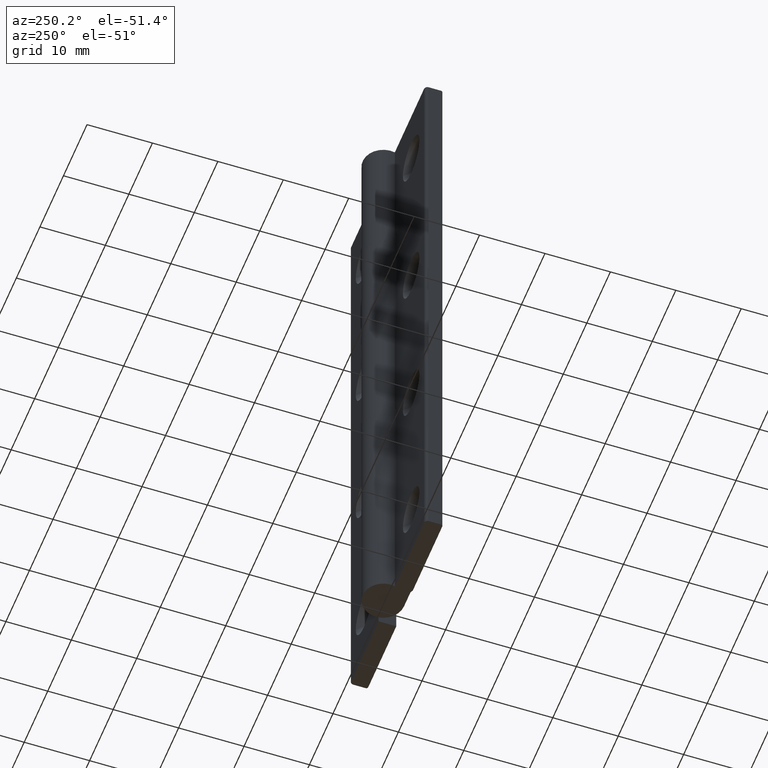
[diagram: clean part render]
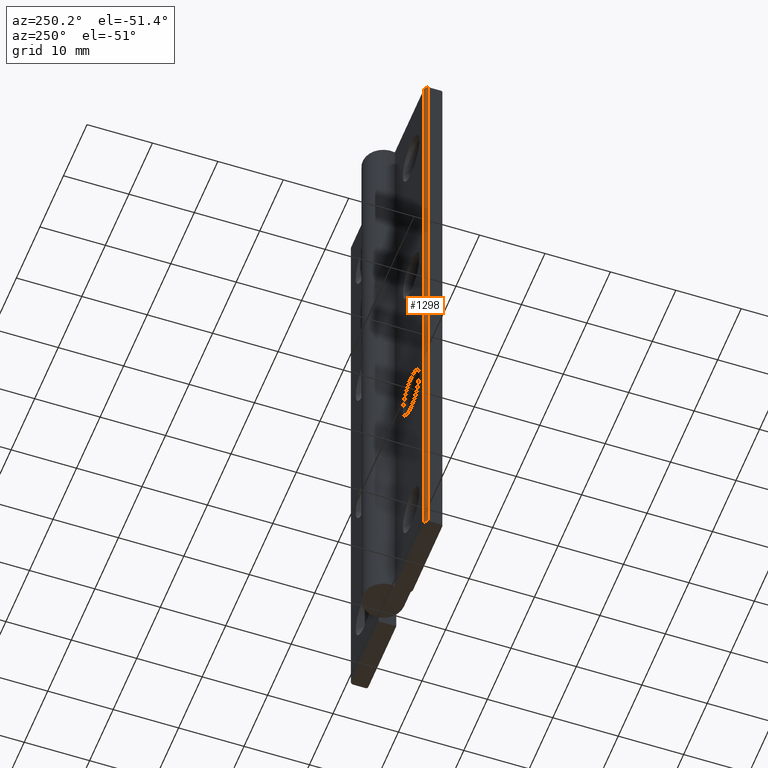
[diagram: same view with one face highlighted and labeled with its STEP entity id]
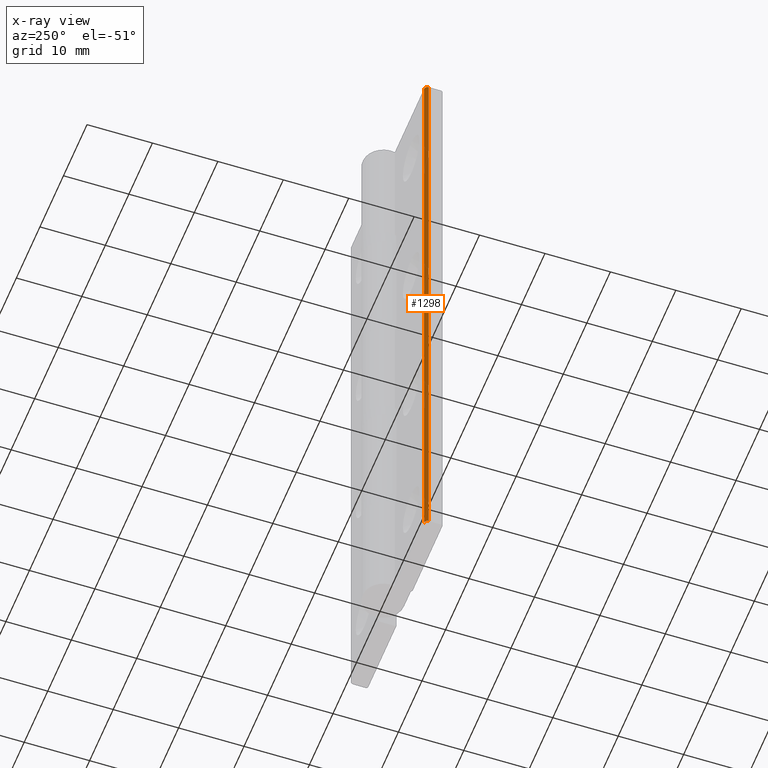
[diagram: x-ray of the same camera — body ghosted, the highlighted face saturated]
A machine part, auxiliary view. The second image highlights one B-rep face of the part: STEP entity #1298.
The next image is the same camera in x-ray: the body ghosted, the highlighted face saturated — about 0% of this face is hidden behind the body in this view.
In plain terms, the highlighted cylindrical surface (edge-blend (fillet) strip) has radius 0.5 mm, axis along (0, 0, -1).
Its self-contained STEP definition (entity closure, byte-faithful):
#73=CYLINDRICAL_SURFACE('',#1408,0.5);
#179=CIRCLE('',#1406,0.5);
#180=CIRCLE('',#1409,0.5);
#249=FACE_OUTER_BOUND('',#335,.T.);
#335=EDGE_LOOP('',(#1021,#1022,#1023,#1024));
#452=LINE('',#2023,#543);
#472=LINE('',#2091,#563);
#543=VECTOR('',#1591,100.);
#563=VECTOR('',#1667,100.);
#645=VERTEX_POINT('',#2020);
#646=VERTEX_POINT('',#2022);
#665=VERTEX_POINT('',#2084);
#666=VERTEX_POINT('',#2089);
#776=EDGE_CURVE('',#646,#645,#452,.T.);
#807=EDGE_CURVE('',#645,#665,#179,.T.);
#810=EDGE_CURVE('',#665,#666,#472,.T.);
#811=EDGE_CURVE('',#666,#646,#180,.T.);
#1021=ORIENTED_EDGE('',*,*,#807,.T.);
#1022=ORIENTED_EDGE('',*,*,#810,.T.);
#1023=ORIENTED_EDGE('',*,*,#811,.T.);
#1024=ORIENTED_EDGE('',*,*,#776,.T.);
#1298=ADVANCED_FACE('',(#249),#73,.T.);
#1406=AXIS2_PLACEMENT_3D('',#2086,#1661,#1662);
#1408=AXIS2_PLACEMENT_3D('',#2092,#1668,#1669);
#1409=AXIS2_PLACEMENT_3D('',#2093,#1670,#1671);
#1591=DIRECTION('',(0.,0.,-1.));
#1661=DIRECTION('center_axis',(0.,0.,1.));
#1662=DIRECTION('ref_axis',(-0.707106781186546,0.707106781186549,0.));
#1667=DIRECTION('',(0.,0.,1.));
#1668=DIRECTION('center_axis',(0.,0.,-1.));
#1669=DIRECTION('ref_axis',(-0.707106781186546,0.707106781186549,0.));
#1670=DIRECTION('center_axis',(0.,0.,-1.));
#1671=DIRECTION('ref_axis',(-0.707106781186546,0.707106781186549,0.));
#2020=CARTESIAN_POINT('',(-15.5,2.7,-100.));
#2022=CARTESIAN_POINT('',(-15.5,2.7,0.));
#2023=CARTESIAN_POINT('',(-15.5,2.7,0.));
#2084=CARTESIAN_POINT('',(-16.,2.2,-100.));
#2086=CARTESIAN_POINT('Origin',(-15.5,2.2,-100.));
#2089=CARTESIAN_POINT('',(-16.,2.2,0.));
#2091=CARTESIAN_POINT('',(-16.,2.2,0.));
#2092=CARTESIAN_POINT('Origin',(-15.5,2.2,0.));
#2093=CARTESIAN_POINT('Origin',(-15.5,2.2,0.));